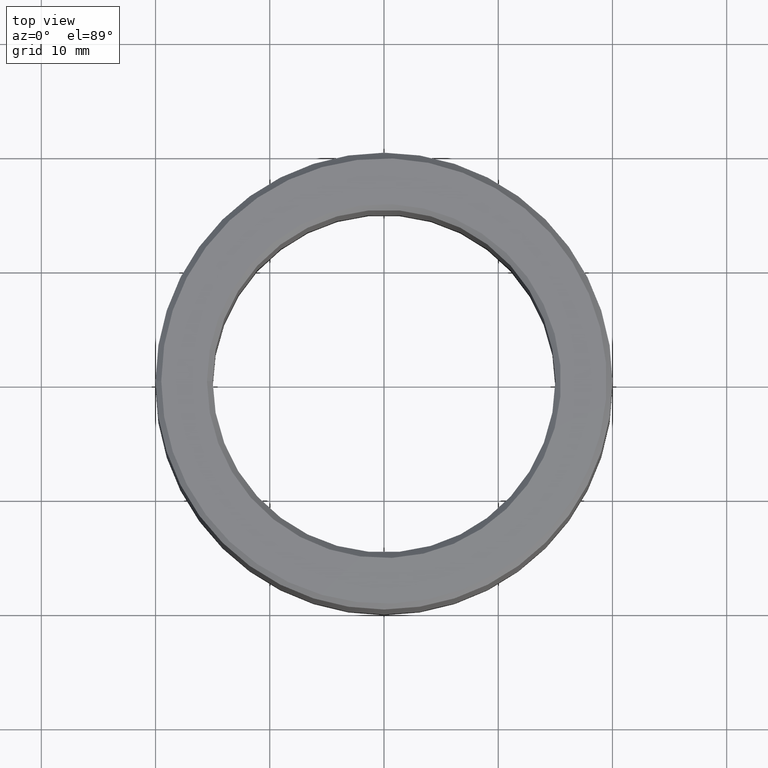
[diagram: clean part render]
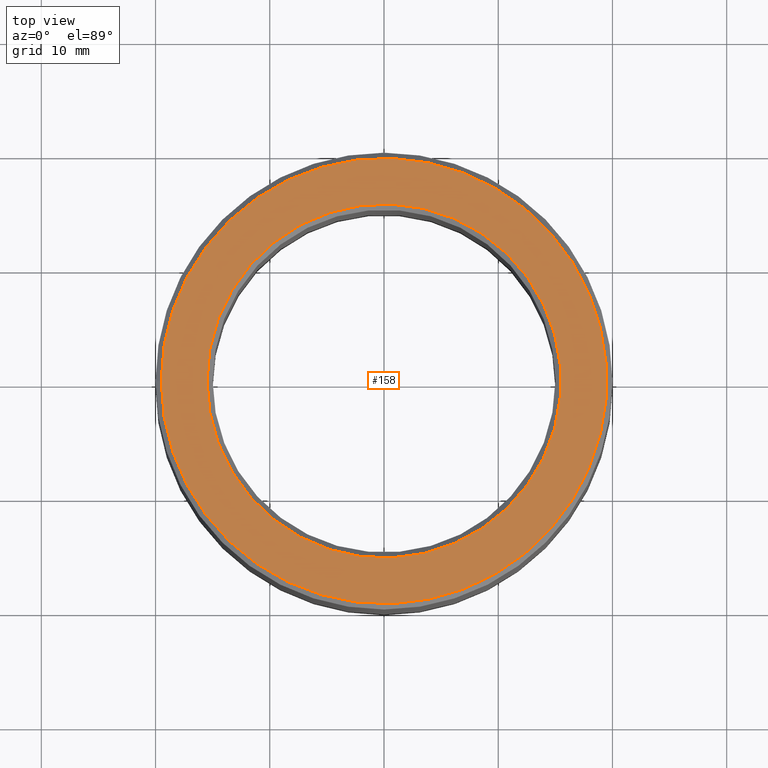
[diagram: same view with one face highlighted and labeled with its STEP entity id]
A machine part, top view. The second image highlights one B-rep face of the part: STEP entity #158.
In plain terms, the highlighted planar face has unit normal (0, -0, 1).
Its self-contained STEP definition (entity closure, byte-faithful):
#158=ADVANCED_FACE('',(#180,#181),#182,.T.);
#180=FACE_BOUND('',#3312,.T.);
#181=FACE_OUTER_BOUND('',#3313,.T.);
#182=PLANE('',#3314);
#3312=EDGE_LOOP('',(#6465));
#3313=EDGE_LOOP('',(#6466));
#3314=AXIS2_PLACEMENT_3D('',#6467,#6468,#6469);
#6465=ORIENTED_EDGE('',*,*,#6518,.T.);
#6466=ORIENTED_EDGE('',*,*,#6519,.F.);
#6467=CARTESIAN_POINT('',(0.0195,0.0,0.03));
#6468=DIRECTION('',(0.0,6.12323399573677E-017,1.0));
#6469=DIRECTION('',(0.0,-1.0,6.12323399573677E-017));
#6518=EDGE_CURVE('',#6548,#6548,#6549,.T.);
#6519=EDGE_CURVE('',#6550,#6550,#6551,.T.);
#6548=VERTEX_POINT('',#6810);
#6549=CIRCLE('',#6811,0.0155);
#6550=VERTEX_POINT('',#6812);
#6551=CIRCLE('',#6813,0.0195);
#6810=CARTESIAN_POINT('',(0.0,0.0155,0.03));
#6811=AXIS2_PLACEMENT_3D('',#6844,#6845,#6846);
#6812=CARTESIAN_POINT('',(0.0,0.0195,0.03));
#6813=AXIS2_PLACEMENT_3D('',#6847,#6848,#6849);
#6844=CARTESIAN_POINT('',(0.0,0.0,0.03));
#6845=DIRECTION('',(0.0,-6.12323399573677E-017,-1.0));
#6846=DIRECTION('',(0.0,1.0,-6.12323399573677E-017));
#6847=CARTESIAN_POINT('',(0.0,0.0,0.03));
#6848=DIRECTION('',(0.0,-6.12323399573677E-017,-1.0));
#6849=DIRECTION('',(0.0,1.0,-6.12323399573677E-017));